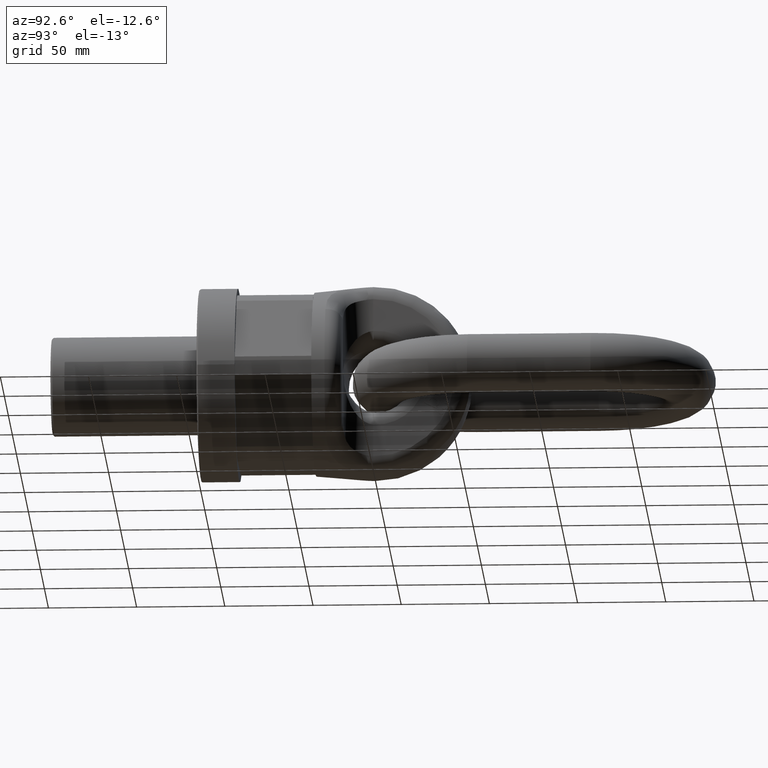
[diagram: clean part render]
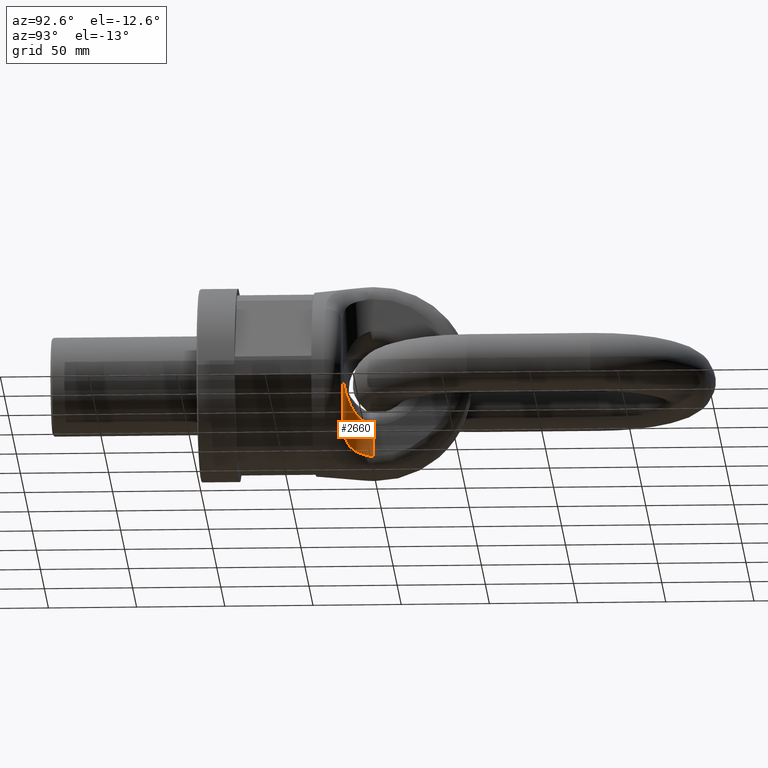
[diagram: same view with one face highlighted and labeled with its STEP entity id]
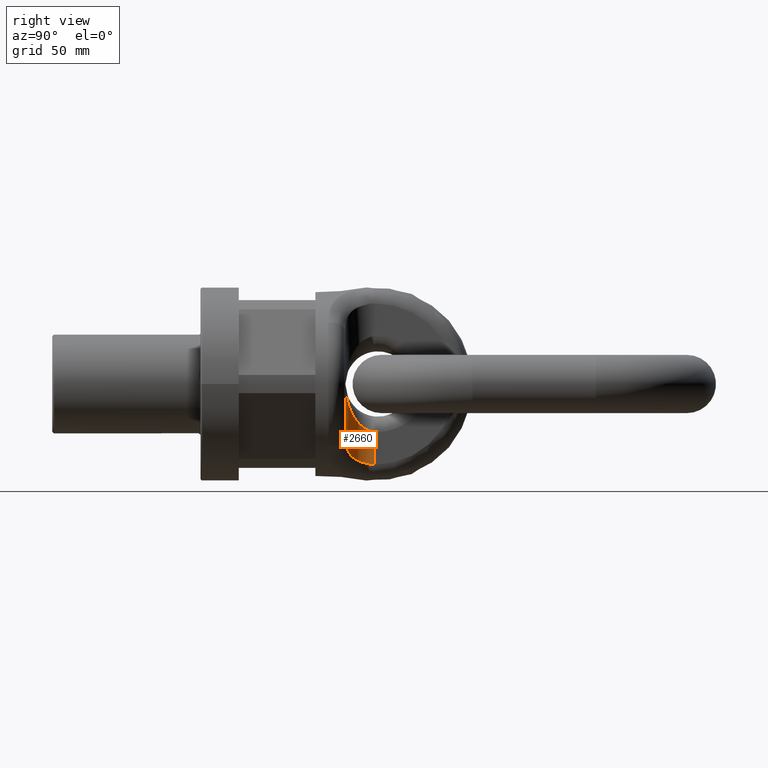
[diagram: same view with one face highlighted and labeled with its STEP entity id]
A machine part, auxiliary view. The second image highlights one B-rep face of the part: STEP entity #2660.
A second angle (right view) of the same face is appended — the face is thin or edge-on in the first view.
In plain terms, the highlighted cylindrical surface (edge-blend (fillet) strip) has radius 16.5 mm, axis along (0, 0, -1).
Its self-contained STEP definition (entity closure, byte-faithful):
#346=B_SPLINE_CURVE_WITH_KNOTS('',3,(#6990,#6991,#6992,#6993,#6994,#6995,
#6996,#6997,#6998,#6999),.UNSPECIFIED.,.F.,.F.,(4,2,2,2,4),(0.,0.125,0.250000000000001,
0.500000000000001,1.),.UNSPECIFIED.);
#347=B_SPLINE_CURVE_WITH_KNOTS('',3,(#7002,#7003,#7004,#7005,#7006,#7007,
#7008,#7009,#7010,#7011),.UNSPECIFIED.,.F.,.F.,(4,2,2,2,4),(0.,0.25,0.5,
0.75,1.),.UNSPECIFIED.);
#348=B_SPLINE_CURVE_WITH_KNOTS('',3,(#7013,#7014,#7015,#7016),
 .UNSPECIFIED.,.F.,.F.,(4,4),(0.,1.),.UNSPECIFIED.);
#1813=FACE_OUTER_BOUND('',#3095,.T.);
#2021=CYLINDRICAL_SURFACE('',#5643,16.5);
#2064=LINE('',#6785,#2320);
#2092=LINE('',#7000,#2348);
#2320=VECTOR('',#5922,1.);
#2348=VECTOR('',#5956,1.);
#2660=ADVANCED_FACE('',(#1813),#2021,.F.);
#3095=EDGE_LOOP('',(#3508,#3509,#3510,#3511,#3512));
#3508=ORIENTED_EDGE('',*,*,#5002,.F.);
#3509=ORIENTED_EDGE('',*,*,#5054,.T.);
#3510=ORIENTED_EDGE('',*,*,#5055,.F.);
#3511=ORIENTED_EDGE('',*,*,#5056,.T.);
#3512=ORIENTED_EDGE('',*,*,#5057,.T.);
#4592=VERTEX_POINT('',#6784);
#4593=VERTEX_POINT('',#6786);
#4640=VERTEX_POINT('',#6962);
#4643=VERTEX_POINT('',#7001);
#4644=VERTEX_POINT('',#7012);
#5002=EDGE_CURVE('',#4592,#4593,#2064,.T.);
#5054=EDGE_CURVE('',#4592,#4640,#346,.T.);
#5055=EDGE_CURVE('',#4643,#4640,#2092,.T.);
#5056=EDGE_CURVE('',#4643,#4644,#347,.T.);
#5057=EDGE_CURVE('',#4644,#4593,#348,.T.);
#5643=AXIS2_PLACEMENT_3D('',#7017,#5957,#5958);
#5922=DIRECTION('',(0.,0.,-1.));
#5956=DIRECTION('',(0.,0.,1.));
#5957=DIRECTION('',(0.,0.,-1.));
#5958=DIRECTION('',(-1.,0.,0.));
#6784=CARTESIAN_POINT('',(16.5,98.5,-27.1765063979902));
#6785=CARTESIAN_POINT('',(16.5,98.5,-51.0695971011458));
#6786=CARTESIAN_POINT('',(16.5,98.5,-45.593310912896));
#6962=CARTESIAN_POINT('',(33.,82.,0.));
#6990=CARTESIAN_POINT('',(16.5,98.5,-27.1765063979902));
#6991=CARTESIAN_POINT('',(16.5,96.8771106077184,-26.9937373166016));
#6992=CARTESIAN_POINT('',(16.7387188694633,95.3502560019609,-26.479133296591));
#6993=CARTESIAN_POINT('',(17.5367258780912,92.5638981907116,-24.9960383621846));
#6994=CARTESIAN_POINT('',(18.0710025285233,91.3645324490437,-24.0717493327841));
#6995=CARTESIAN_POINT('',(19.9237480849019,88.1355855665011,-20.9463835584117));
#6996=CARTESIAN_POINT('',(21.4162891429577,86.5843571499526,-18.5185754410383));
#6997=CARTESIAN_POINT('',(26.1347750546949,82.9829676339787,-10.9071510730189));
#6998=CARTESIAN_POINT('',(29.5838689720361,82.,-5.43080894710829));
#6999=CARTESIAN_POINT('',(33.,82.,0.));
#7000=CARTESIAN_POINT('',(33.,82.,51.0695971011458));
#7001=CARTESIAN_POINT('',(33.,82.,-29.2203017647612));
#7002=CARTESIAN_POINT('',(33.,82.,-29.2203017647612));
#7003=CARTESIAN_POINT('',(31.7604835005405,82.,-31.3624967265596));
#7004=CARTESIAN_POINT('',(30.3679904712917,82.1319592399398,-33.3802047079644));
#7005=CARTESIAN_POINT('',(27.2545975093216,82.9490970454346,-37.1182415490326));
#7006=CARTESIAN_POINT('',(25.551709899972,83.6358633814773,-38.7974517914109));
#7007=CARTESIAN_POINT('',(22.1528898331945,85.9000085770875,-41.6080975378234));
#7008=CARTESIAN_POINT('',(20.5171624757036,87.460123196881,-42.6905270538874));
#7009=CARTESIAN_POINT('',(17.9444334047456,91.3564695715712,-44.3382807711403));
#7010=CARTESIAN_POINT('',(17.0441367392335,93.6345344044535,-44.9059501713278));
#7011=CARTESIAN_POINT('',(16.6814735026264,96.0595711535644,-45.3507065058065));
#7012=CARTESIAN_POINT('',(16.6814735026264,96.0595711535644,-45.3507065058064));
#7013=CARTESIAN_POINT('',(16.6814735026264,96.0595711535644,-45.3507065058064));
#7014=CARTESIAN_POINT('',(16.561466060925,96.8620303689381,-45.497879046317));
#7015=CARTESIAN_POINT('',(16.5,97.6753621262783,-45.5794717574169));
#7016=CARTESIAN_POINT('',(16.5,98.5,-45.593310912896));
#7017=CARTESIAN_POINT('',(33.,98.5,60.5));